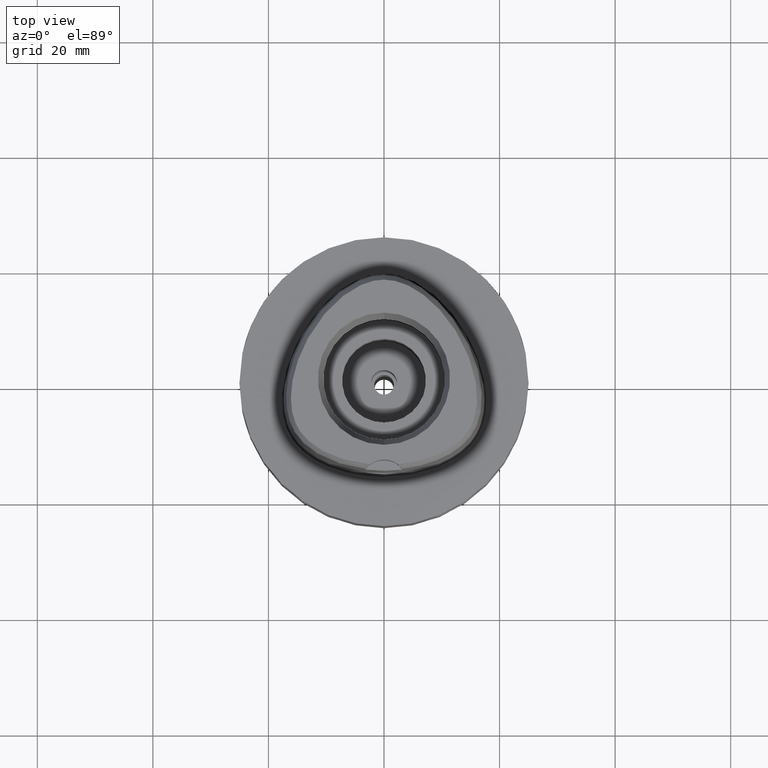
[diagram: clean part render]
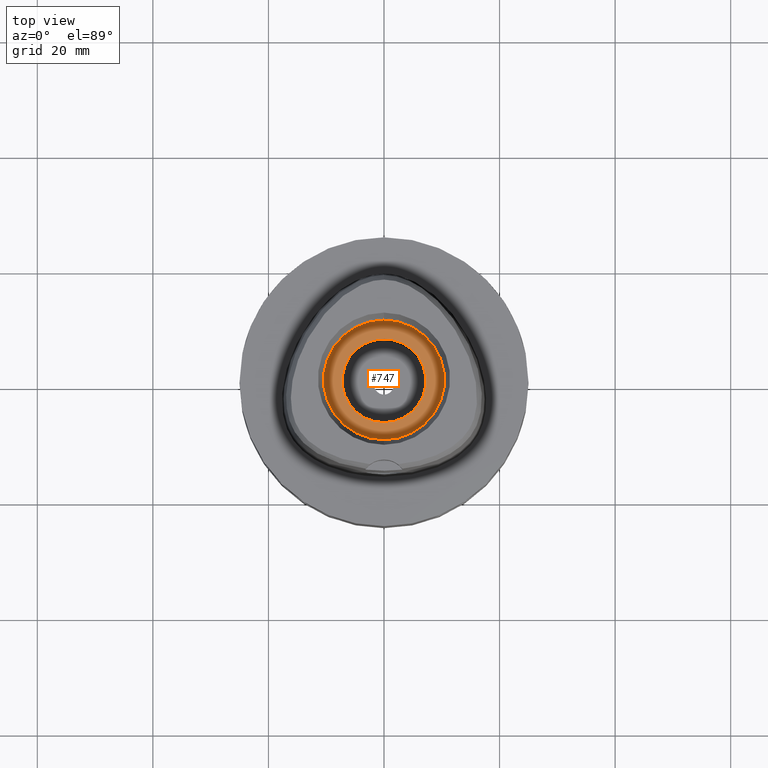
[diagram: same view with one face highlighted and labeled with its STEP entity id]
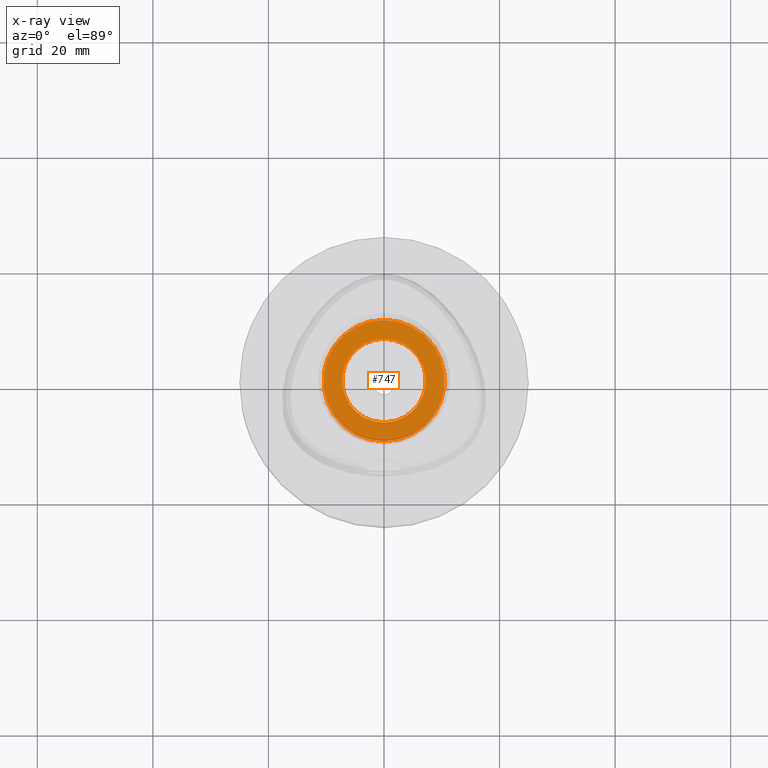
[diagram: x-ray of the same camera — body ghosted, the highlighted face saturated]
A machine part, top view. The second image highlights one B-rep face of the part: STEP entity #747.
The next image is the same camera in x-ray: the body ghosted, the highlighted face saturated — about 3% of this face is hidden behind the body in this view.
In plain terms, the highlighted planar face has unit normal (0, 0, -1).
Its self-contained STEP definition (entity closure, byte-faithful):
#31 = DIRECTION ( 'NONE',  ( 0.0000000000000000000, -1.000000000000000000, 0.0000000000000000000 ) ) ;
#81 = EDGE_CURVE ( 'NONE', #4738, #2528, #4409, .T. ) ;
#536 = CARTESIAN_POINT ( 'NONE',  ( 0.0000000000000000000, 1.610410540878999754E-14, 10.00000000000000000 ) ) ;
#555 = CARTESIAN_POINT ( 'NONE',  ( 0.0000000000000000000, 10.50000000000000000, 10.00000000000000000 ) ) ;
#557 = EDGE_CURVE ( 'NONE', #3267, #4421, #3311, .T. ) ;
#579 = CARTESIAN_POINT ( 'NONE',  ( 0.0000000000000000000, -10.50000000000000000, 10.00000000000000000 ) ) ;
#681 = DIRECTION ( 'NONE',  ( 0.0000000000000000000, 0.0000000000000000000, 1.000000000000000000 ) ) ;
#747 = ADVANCED_FACE ( 'NONE', ( #1180, #1834 ), #4819, .F. ) ;
#764 = DIRECTION ( 'NONE',  ( 0.0000000000000000000, 0.0000000000000000000, 1.000000000000000000 ) ) ;
#852 = EDGE_CURVE ( 'NONE', #2528, #4738, #4252, .T. ) ;
#1082 = CARTESIAN_POINT ( 'NONE',  ( 0.0000000000000000000, -7.250000000000000000, 10.00000000000000000 ) ) ;
#1143 = EDGE_LOOP ( 'NONE', ( #2898, #4751 ) ) ;
#1180 = FACE_OUTER_BOUND ( 'NONE', #1496, .T. ) ;
#1233 = ORIENTED_EDGE ( 'NONE', *, *, #81, .F. ) ;
#1496 = EDGE_LOOP ( 'NONE', ( #1233, #1828 ) ) ;
#1516 = CARTESIAN_POINT ( 'NONE',  ( 0.0000000000000000000, 1.347111479061999855E-14, 10.00000000000000000 ) ) ;
#1594 = AXIS2_PLACEMENT_3D ( 'NONE', #2581, #4109, #3392 ) ;
#1776 = CARTESIAN_POINT ( 'NONE',  ( 0.0000000000000000000, 7.250000000000000000, 10.00000000000000000 ) ) ;
#1828 = ORIENTED_EDGE ( 'NONE', *, *, #852, .F. ) ;
#1834 = FACE_BOUND ( 'NONE', #1143, .T. ) ;
#1958 = EDGE_CURVE ( 'NONE', #4421, #3267, #3784, .T. ) ;
#2288 = AXIS2_PLACEMENT_3D ( 'NONE', #3695, #764, #2999 ) ;
#2309 = CARTESIAN_POINT ( 'NONE',  ( 0.0000000000000000000, 1.610410540878999754E-14, 10.00000000000000000 ) ) ;
#2439 = AXIS2_PLACEMENT_3D ( 'NONE', #1516, #4134, #31 ) ;
#2528 = VERTEX_POINT ( 'NONE', #555 ) ;
#2581 = CARTESIAN_POINT ( 'NONE',  ( 0.0000000000000000000, 1.610410540878999754E-14, 10.00000000000000000 ) ) ;
#2757 = AXIS2_PLACEMENT_3D ( 'NONE', #2309, #3817, #3118 ) ;
#2898 = ORIENTED_EDGE ( 'NONE', *, *, #557, .F. ) ;
#2999 = DIRECTION ( 'NONE',  ( 0.0000000000000000000, 1.000000000000000000, 0.0000000000000000000 ) ) ;
#3118 = DIRECTION ( 'NONE',  ( 0.0000000000000000000, 1.000000000000000000, 0.0000000000000000000 ) ) ;
#3148 = AXIS2_PLACEMENT_3D ( 'NONE', #536, #681, #4442 ) ;
#3267 = VERTEX_POINT ( 'NONE', #1082 ) ;
#3311 = CIRCLE ( 'NONE', #3148, 7.250000000000000000 ) ;
#3392 = DIRECTION ( 'NONE',  ( 0.0000000000000000000, -1.000000000000000000, 0.0000000000000000000 ) ) ;
#3695 = CARTESIAN_POINT ( 'NONE',  ( 0.0000000000000000000, 1.610410540878999754E-14, 10.00000000000000000 ) ) ;
#3784 = CIRCLE ( 'NONE', #2288, 7.250000000000000000 ) ;
#3817 = DIRECTION ( 'NONE',  ( 0.0000000000000000000, 0.0000000000000000000, -1.000000000000000000 ) ) ;
#4109 = DIRECTION ( 'NONE',  ( 0.0000000000000000000, 0.0000000000000000000, -1.000000000000000000 ) ) ;
#4134 = DIRECTION ( 'NONE',  ( 0.0000000000000000000, 0.0000000000000000000, -1.000000000000000000 ) ) ;
#4252 = CIRCLE ( 'NONE', #2757, 10.50000000000000000 ) ;
#4409 = CIRCLE ( 'NONE', #1594, 10.50000000000000000 ) ;
#4421 = VERTEX_POINT ( 'NONE', #1776 ) ;
#4442 = DIRECTION ( 'NONE',  ( 0.0000000000000000000, -1.000000000000000000, 0.0000000000000000000 ) ) ;
#4738 = VERTEX_POINT ( 'NONE', #579 ) ;
#4751 = ORIENTED_EDGE ( 'NONE', *, *, #1958, .F. ) ;
#4819 = PLANE ( 'NONE',  #2439 ) ;